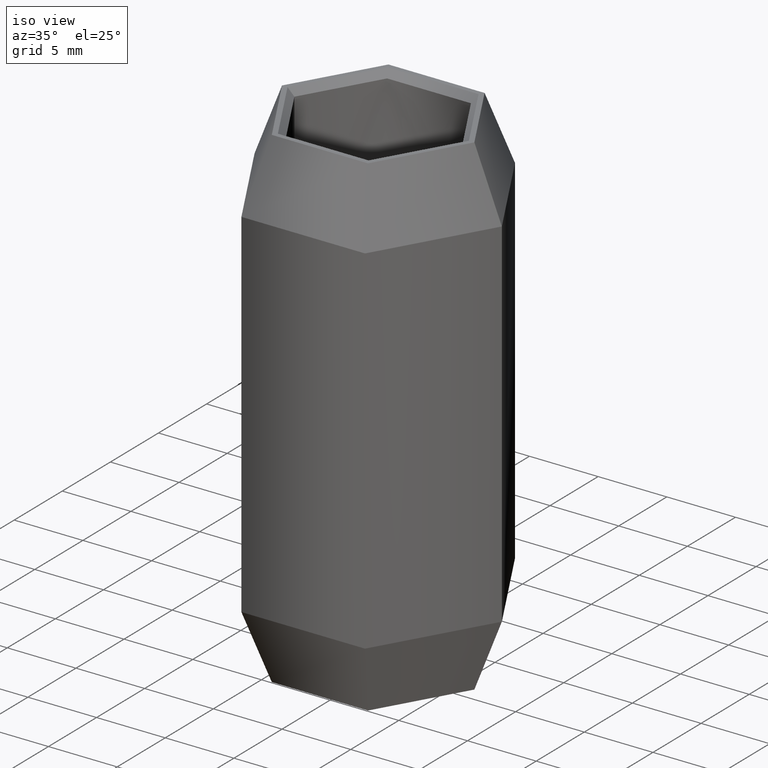
[diagram: clean part render]
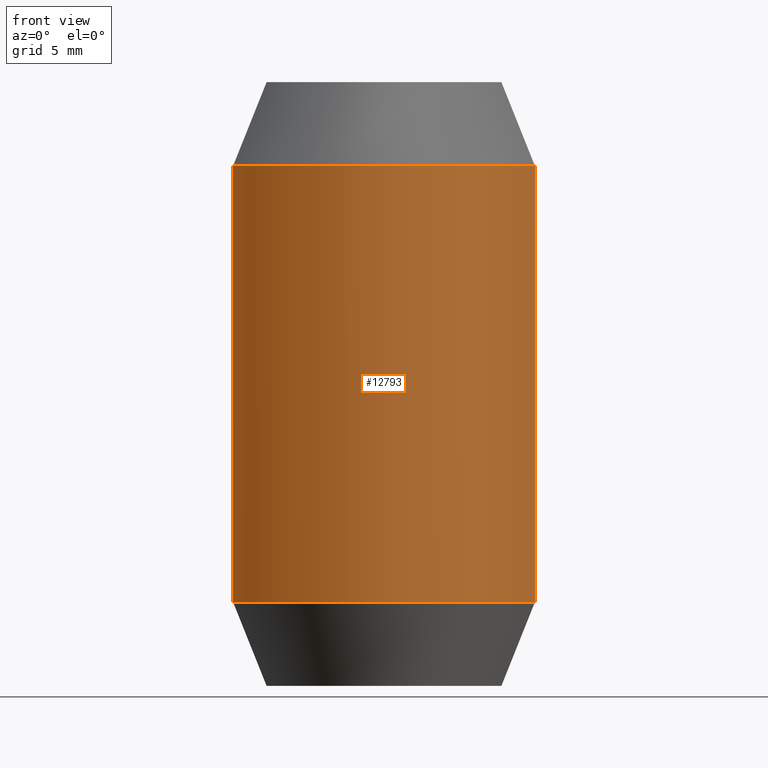
[diagram: tour spotlight — one face highlighted and labeled with its STEP entity id]
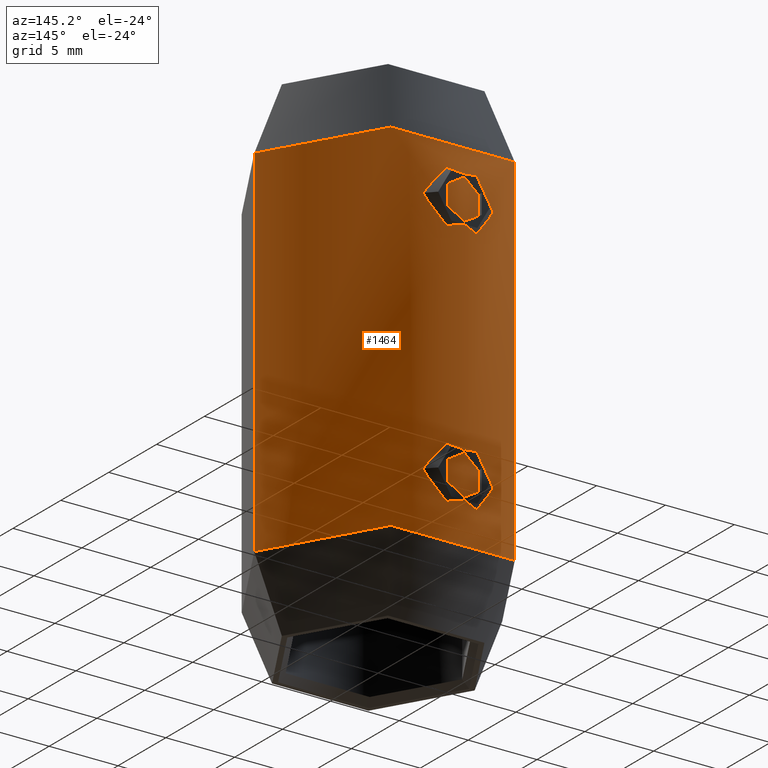
[diagram: tour spotlight — one face highlighted and labeled with its STEP entity id]
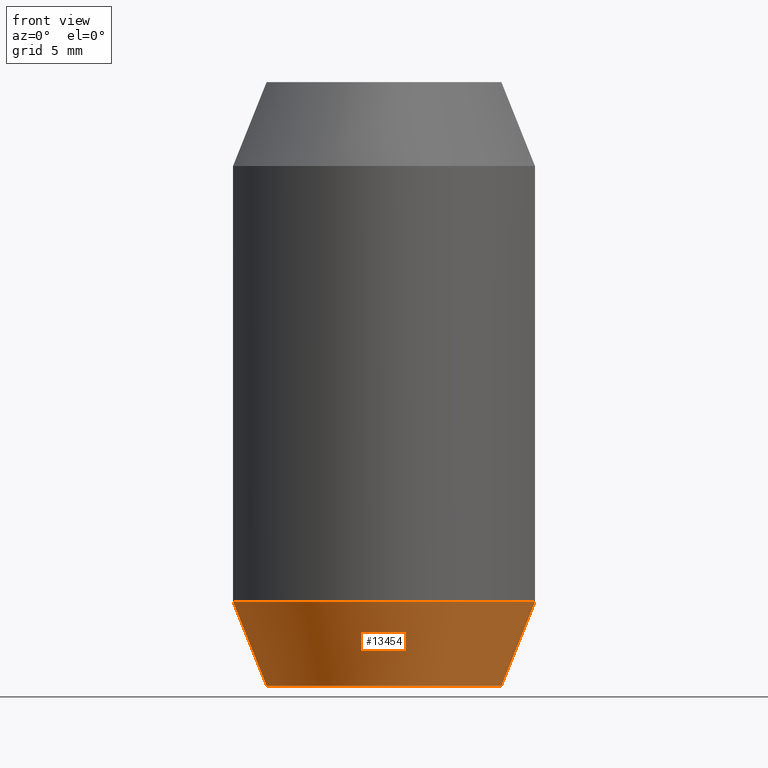
[diagram: tour spotlight — one face highlighted and labeled with its STEP entity id]
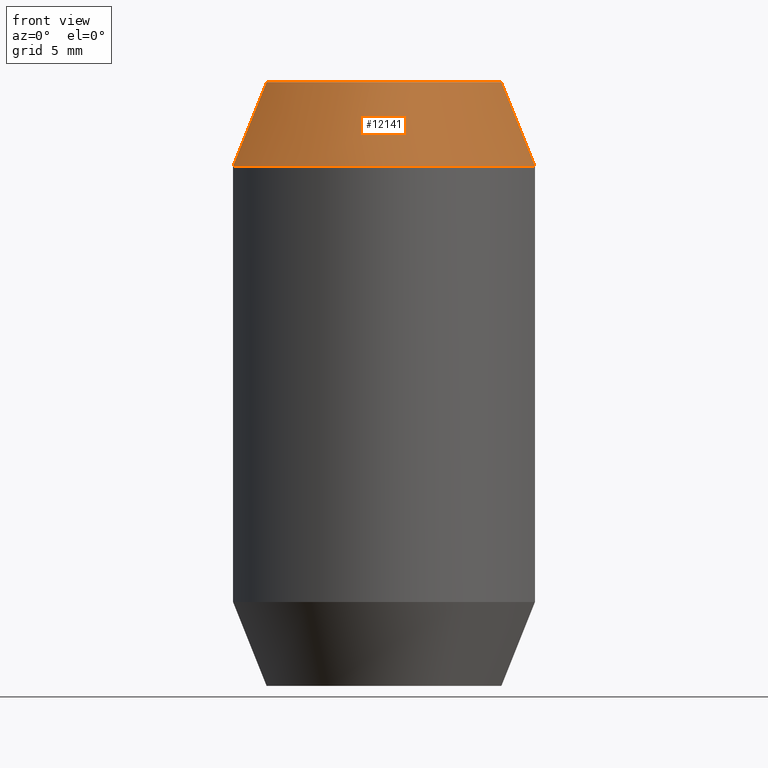
[diagram: tour spotlight — one face highlighted and labeled with its STEP entity id]
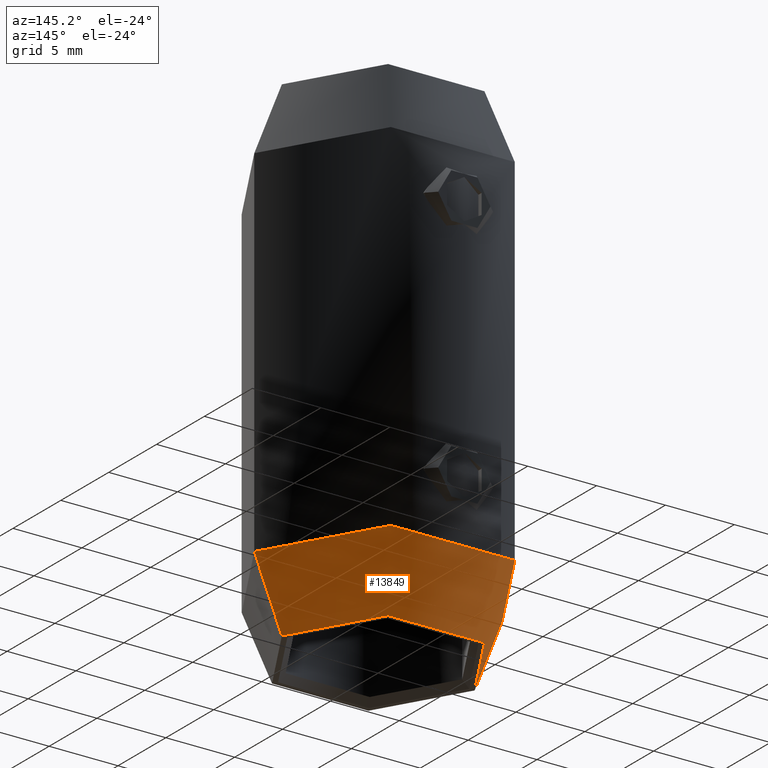
[diagram: tour spotlight — one face highlighted and labeled with its STEP entity id]
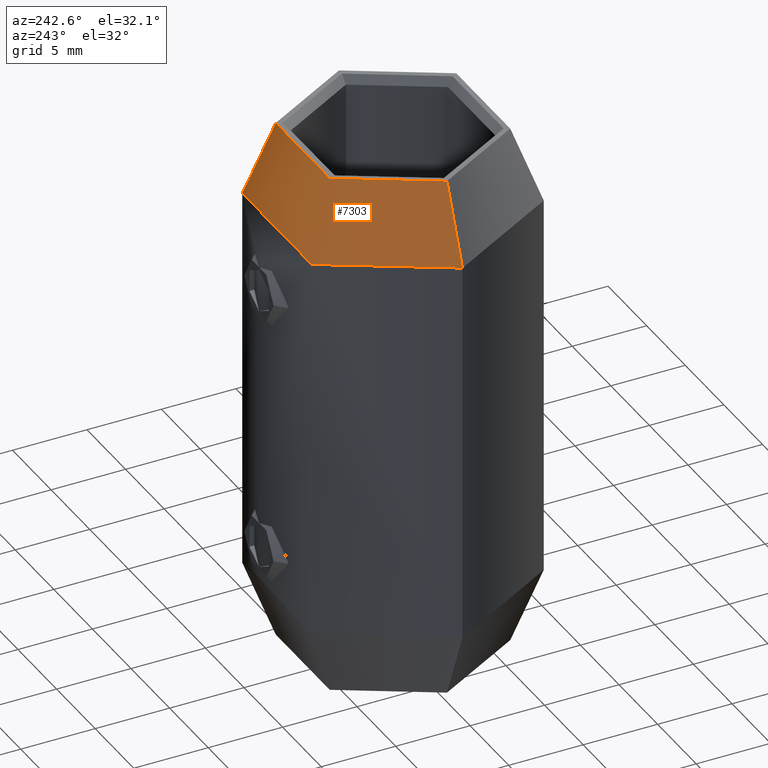
[diagram: tour spotlight — one face highlighted and labeled with its STEP entity id]
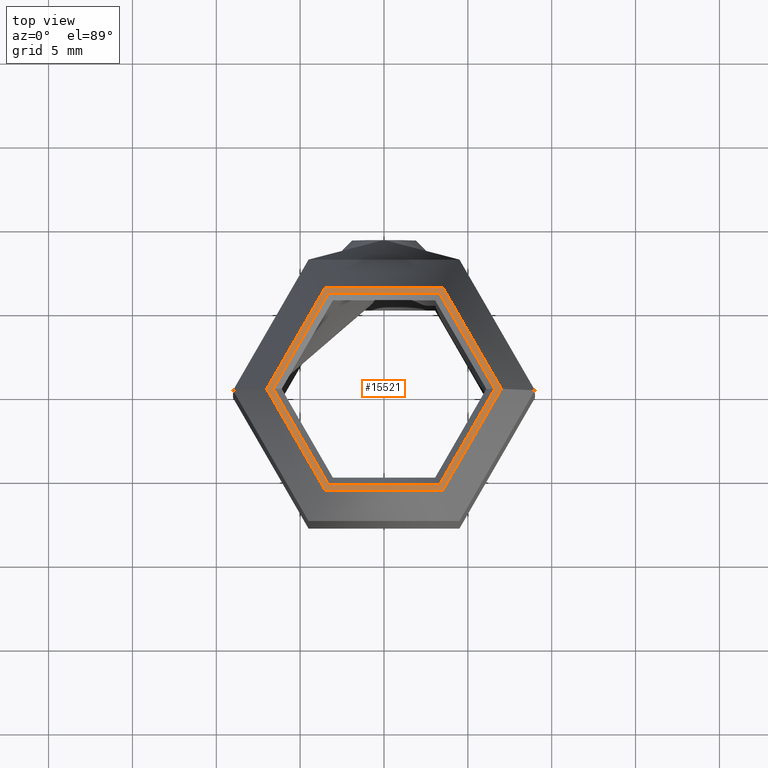
[diagram: tour spotlight — one face highlighted and labeled with its STEP entity id]
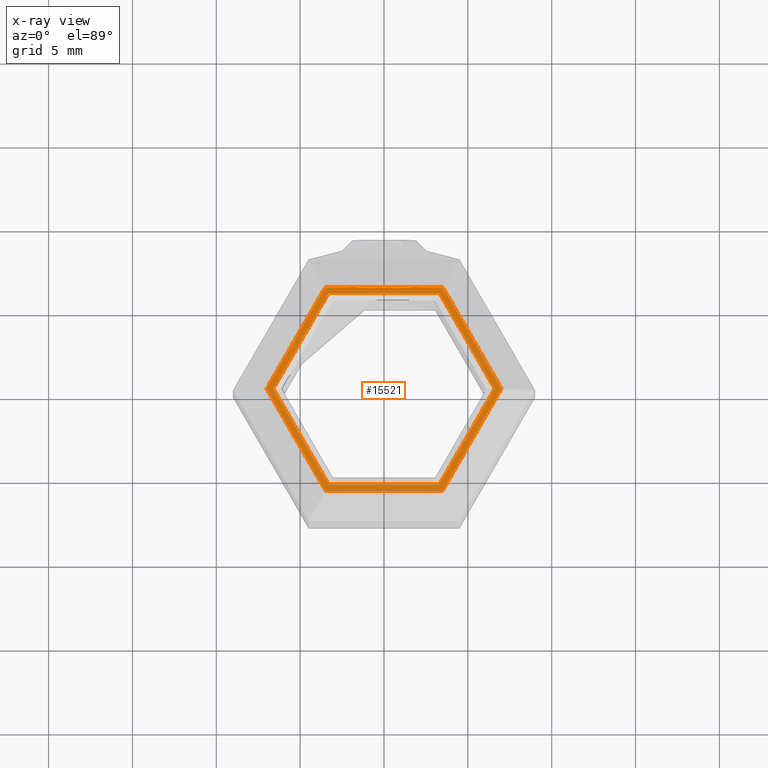
[diagram: x-ray of the same camera — body ghosted, this tour face saturated]
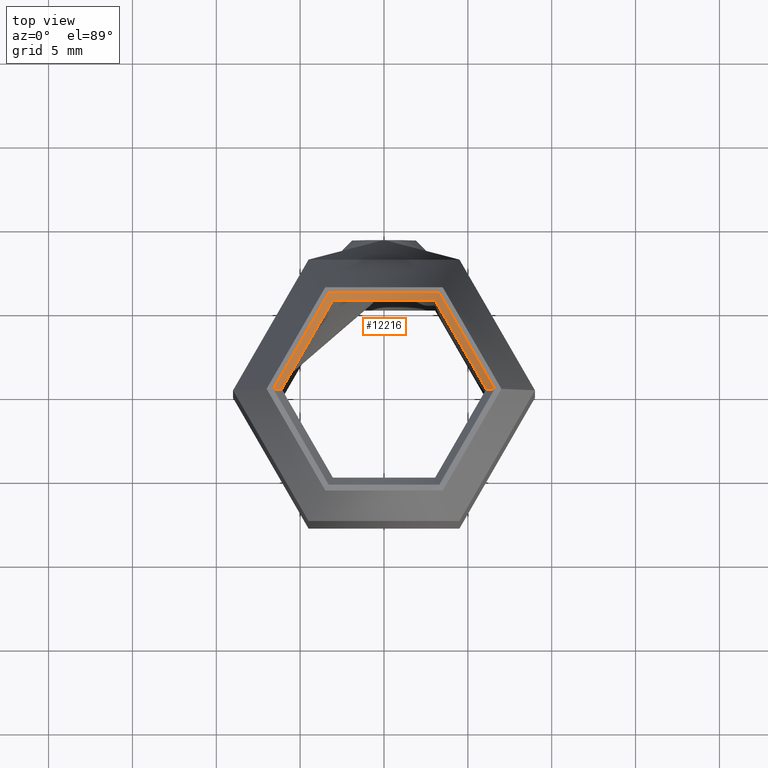
[diagram: tour spotlight — one face highlighted and labeled with its STEP entity id]
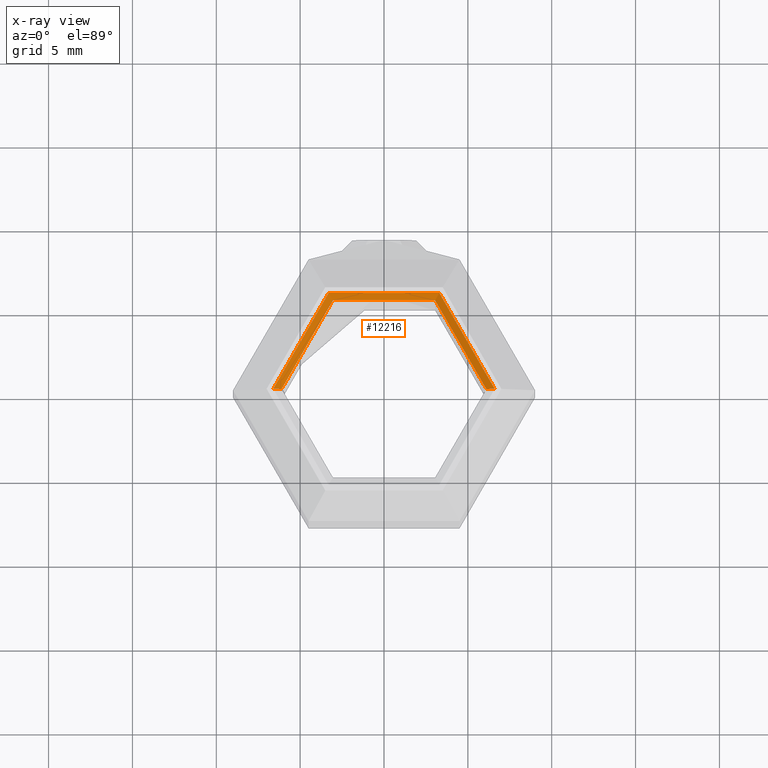
[diagram: x-ray of the same camera — body ghosted, this tour face saturated]
A machine part: a face-by-face anatomy tour. The part has 301 B-rep faces; the first image is the clean iso view, then the 8 largest visible faces are spotlighted one at a time (largest first), each with its STEP entity span.

Face 1 — front view, entity #12793. In plain terms, the highlighted cylindrical surface (partial cylindrical patch) has radius 9 mm, axis along (0, 0, 1).
Definition (entity closure, byte-faithful):
#411 = DIRECTION ( 'NONE',  ( -0.000000000000000000, -0.000000000000000000, 1.000000000000000000 ) ) ;
#843 = DIRECTION ( 'NONE',  ( 1.000000000000000000, 0.000000000000000000, 0.000000000000000000 ) ) ;
#1338 = LINE ( 'NONE', #12367, #9166 ) ;
#1353 = AXIS2_PLACEMENT_3D ( 'NONE', #2131, #9513, #843 ) ;
#2131 = CARTESIAN_POINT ( 'NONE',  ( 0.000000000000000000, 0.000000000000000000, 13.00000000000000000 ) ) ;
#2694 = LINE ( 'NONE', #15162, #14568 ) ;
#3679 = DIRECTION ( 'NONE',  ( -0.000000000000000000, -0.000000000000000000, 1.000000000000000000 ) ) ;
#4453 = FACE_OUTER_BOUND ( 'NONE', #9514, .T. ) ;
#6173 = CARTESIAN_POINT ( 'NONE',  ( 0.000000000000000000, 0.000000000000000000, 18.00000000000000000 ) ) ;
#6290 = VERTEX_POINT ( 'NONE', #11965 ) ;
#6418 = ORIENTED_EDGE ( 'NONE', *, *, #9393, .F. ) ;
#8699 = AXIS2_PLACEMENT_3D ( 'NONE', #15251, #411, #10357 ) ;
#9166 = VECTOR ( 'NONE', #13561, 1000.000000000000000 ) ;
#9393 = EDGE_CURVE ( 'NONE', #6290, #11340, #13589, .T. ) ;
#9513 = DIRECTION ( 'NONE',  ( -0.000000000000000000, -0.000000000000000000, 1.000000000000000000 ) ) ;
#9514 = EDGE_LOOP ( 'NONE', ( #14167, #13720, #13004, #6418 ) ) ;
#9934 = VERTEX_POINT ( 'NONE', #14290 ) ;
#10254 = DIRECTION ( 'NONE',  ( -0.000000000000000000, -0.000000000000000000, 1.000000000000000000 ) ) ;
#10357 = DIRECTION ( 'NONE',  ( 1.000000000000000000, 0.000000000000000000, 0.000000000000000000 ) ) ;
#11340 = VERTEX_POINT ( 'NONE', #13727 ) ;
#11965 = CARTESIAN_POINT ( 'NONE',  ( -8.999999999999998224, 1.102182119232617517E-15, 13.00000000000000000 ) ) ;
#12367 = CARTESIAN_POINT ( 'NONE',  ( 8.999999999999998224, 0.000000000000000000, 18.00000000000000000 ) ) ;
#12393 = VERTEX_POINT ( 'NONE', #13985 ) ;
#12585 = CIRCLE ( 'NONE', #8699, 8.999999999999998224 ) ;
#12793 = ADVANCED_FACE ( 'NONE', ( #4453 ), #13756, .T. ) ;
#13004 = ORIENTED_EDGE ( 'NONE', *, *, #13972, .T. ) ;
#13076 = EDGE_CURVE ( 'NONE', #12393, #9934, #12585, .T. ) ;
#13561 = DIRECTION ( 'NONE',  ( -0.000000000000000000, -0.000000000000000000, 1.000000000000000000 ) ) ;
#13589 = CIRCLE ( 'NONE', #1353, 8.999999999999998224 ) ;
#13720 = ORIENTED_EDGE ( 'NONE', *, *, #13076, .T. ) ;
#13727 = CARTESIAN_POINT ( 'NONE',  ( 8.999999999999998224, 0.000000000000000000, 13.00000000000000000 ) ) ;
#13756 = CYLINDRICAL_SURFACE ( 'NONE', #14593, 8.999999999999998224 ) ;
#13972 = EDGE_CURVE ( 'NONE', #9934, #11340, #1338, .T. ) ;
#13985 = CARTESIAN_POINT ( 'NONE',  ( -8.999999999999998224, 1.102182119232617714E-15, -13.00000000000000178 ) ) ;
#14167 = ORIENTED_EDGE ( 'NONE', *, *, #14198, .F. ) ;
#14198 = EDGE_CURVE ( 'NONE', #12393, #6290, #2694, .T. ) ;
#14290 = CARTESIAN_POINT ( 'NONE',  ( 8.999999999999998224, 0.000000000000000000, -13.00000000000000178 ) ) ;
#14568 = VECTOR ( 'NONE', #10254, 1000.000000000000000 ) ;
#14593 = AXIS2_PLACEMENT_3D ( 'NONE', #6173, #3679, #14841 ) ;
#14841 = DIRECTION ( 'NONE',  ( 1.000000000000000000, 0.000000000000000000, 0.000000000000000000 ) ) ;
#15162 = CARTESIAN_POINT ( 'NONE',  ( -8.999999999999998224, 1.102182119232617517E-15, 18.00000000000000000 ) ) ;
#15251 = CARTESIAN_POINT ( 'NONE',  ( 0.000000000000000000, 0.000000000000000000, -13.00000000000000178 ) ) ;

Face 2 — auxiliary view, entity #1464. In plain terms, the highlighted cylindrical surface (partial cylindrical patch) has radius 9 mm, axis along (0, 0, 1).
Definition (entity closure, byte-faithful):
#141 = CARTESIAN_POINT ( 'NONE',  ( 0.000000000000000000, 0.000000000000000000, -13.00000000000000178 ) ) ;
#217 = CARTESIAN_POINT ( 'NONE',  ( 1.821270232687748125, 8.814134435502452902, 7.945666501401936088 ) ) ;
#367 = CARTESIAN_POINT ( 'NONE',  ( 2.571768753324493955E-16, 8.999999999999998224, 6.900000000000001243 ) ) ;
#758 = CARTESIAN_POINT ( 'NONE',  ( 1.821270232687745017, 8.814134435502458231, -10.05433349859806569 ) ) ;
#765 = CARTESIAN_POINT ( 'NONE',  ( -2.086273663307475434, 8.754897343847833469, 8.723639342815243225 ) ) ;
#818 = CARTESIAN_POINT ( 'NONE',  ( -1.991843928111111550, 8.776983570939002277, 9.679151338962943996 ) ) ;
#1005 = CARTESIAN_POINT ( 'NONE',  ( -2.086513239613602355, 8.754840634587448989, -8.725048273204425442 ) ) ;
#1049 = AXIS2_PLACEMENT_3D ( 'NONE', #141, #6327, #5143 ) ;
#1108 = CARTESIAN_POINT ( 'NONE',  ( -2.099943563489800269, 8.751584829818270350, -8.861637844470349634 ) ) ;
#1207 = ORIENTED_EDGE ( 'NONE', *, *, #15417, .T. ) ;
#1236 = CARTESIAN_POINT ( 'NONE',  ( 0.9311229287888932449, 8.952604426523759429, 7.112740471821393129 ) ) ;
#1273 = FACE_OUTER_BOUND ( 'NONE', #14604, .T. ) ;
#1338 = LINE ( 'NONE', #12367, #9166 ) ;
#1342 = CARTESIAN_POINT ( 'NONE',  ( 1.582159275095841977, 8.860378867586938156, 10.38757255550040348 ) ) ;
#1378 = ORIENTED_EDGE ( 'NONE', *, *, #6813, .F. ) ;
#1464 = ADVANCED_FACE ( 'NONE', ( #9679, #2241, #1273 ), #10036, .T. ) ;
#1657 = CARTESIAN_POINT ( 'NONE',  ( -0.5451947702822876884, 8.984481132575623974, 11.03262961501316575 ) ) ;
#1762 = VERTEX_POINT ( 'NONE', #14879 ) ;
#1988 = CARTESIAN_POINT ( 'NONE',  ( 1.669404537159665525, 8.844155109386951708, -10.28130124406839485 ) ) ;
#2088 = DIRECTION ( 'NONE',  ( 1.000000000000000000, 0.000000000000000000, 0.000000000000000000 ) ) ;
#2143 = ORIENTED_EDGE ( 'NONE', *, *, #9210, .T. ) ;
#2239 = CARTESIAN_POINT ( 'NONE',  ( -1.679477079426144437, 8.844114957262966925, -10.29043885399485170 ) ) ;
#2241 = FACE_BOUND ( 'NONE', #12645, .T. ) ;
#2270 = CARTESIAN_POINT ( 'NONE',  ( 2.571768753324493955E-16, 8.999999999999998224, 6.900000000000001243 ) ) ;
#2295 = CARTESIAN_POINT ( 'NONE',  ( -1.992583815650146750, 8.776818335132283266, -9.677230764306219868 ) ) ;
#2498 = EDGE_CURVE ( 'NONE', #1762, #15095, #15410, .T. ) ;
#2557 = CARTESIAN_POINT ( 'NONE',  ( -3.284583562078037481E-15, 8.999999999999998224, -6.900000000000001243 ) ) ;
#2694 = LINE ( 'NONE', #15162, #14568 ) ;
#2699 = CARTESIAN_POINT ( 'NONE',  ( 2.099894659804736552, 8.751596564594677830, 8.722090414501820987 ) ) ;
#2925 = CARTESIAN_POINT ( 'NONE',  ( -0.6788506439432915318, 8.975268029849280182, 10.99200752504877876 ) ) ;
#2939 = AXIS2_PLACEMENT_3D ( 'NONE', #15781, #4521, #2088 ) ;
#2966 = CARTESIAN_POINT ( 'NONE',  ( 0.000000000000000000, 0.000000000000000000, 13.00000000000000000 ) ) ;
#3101 = CARTESIAN_POINT ( 'NONE',  ( -2.086513239613598802, 8.754840634587452541, 9.274951726795572782 ) ) ;
#3217 = CARTESIAN_POINT ( 'NONE',  ( -0.1373305425714236305, 9.000000000000000000, 6.900000000000003908 ) ) ;
#3269 = CARTESIAN_POINT ( 'NONE',  ( 1.887200096898048018, 8.800077975375659278, -8.068714986384616594 ) ) ;
#3322 = CARTESIAN_POINT ( 'NONE',  ( 0.2745879043004498810, 9.000000000000000000, -11.09999999999999787 ) ) ;
#3574 = CARTESIAN_POINT ( 'NONE',  ( -0.6779847307117615740, 8.975330091746489103, -10.99228251151783375 ) ) ;
#3625 = B_SPLINE_CURVE_WITH_KNOTS ( 'NONE', 3,
 ( #2270, #8824, #3807, #1236, #11318, #8877, #11263, #5165, #12533, #217, #10165, #7663, #2699, #12440, #12488, #8938, #12589, #3860, #8719, #14915, #1342, #3759, #11413, #9952, #5006, #6251, #14968, #12385 ),
 .UNSPECIFIED., .F., .F.,
 ( 4, 2, 2, 2, 2, 2, 2, 2, 2, 2, 2, 2, 2, 4 ),
 ( 0.006588328198082919925, 0.007411649798144270482, 0.007823310598174945327, 0.008234971398205621906, 0.008646632198236296751, 0.009058292998266973331, 0.009881614598328321286, 0.01029327539835899613, 0.01070493619838967098, 0.01111659699842034756, 0.01152825779845102414, 0.01235157939851237903, 0.01276324019854305561, 0.01317490099857373219 ),
 .UNSPECIFIED. ) ;
#3759 = CARTESIAN_POINT ( 'NONE',  ( 1.293136229575852836, 8.908757785885216052, 10.67694393643832029 ) ) ;
#3807 = CARTESIAN_POINT ( 'NONE',  ( 0.5518026687520184437, 8.986655524725263078, 6.955380828704875285 ) ) ;
#3860 = CARTESIAN_POINT ( 'NONE',  ( 1.887200096898052237, 8.800077975375661055, 9.931285013615379853 ) ) ;
#4183 = CARTESIAN_POINT ( 'NONE',  ( -1.281344237653954110, 8.909060968035033667, 10.66941714240942041 ) ) ;
#4301 = CARTESIAN_POINT ( 'NONE',  ( 2.409859401707378383E-16, 8.999999999999998224, 11.09999999999999787 ) ) ;
#4467 = CARTESIAN_POINT ( 'NONE',  ( 0.9311229287888886930, 8.952604426523757652, -10.88725952817860687 ) ) ;
#4511 = CARTESIAN_POINT ( 'NONE',  ( 0.5472899765283957274, 8.984366466614998714, -6.967874090501058326 ) ) ;
#4521 = DIRECTION ( 'NONE',  ( -0.000000000000000000, -0.000000000000000000, 1.000000000000000000 ) ) ;
#4525 = CARTESIAN_POINT ( 'NONE',  ( 1.822787438124695569, 8.813825155187871019, -7.948154672940514587 ) ) ;
#4529 = CARTESIAN_POINT ( 'NONE',  ( -0.2767516183469415636, 8.996761130966879350, 6.913758579802273374 ) ) ;
#4576 = CARTESIAN_POINT ( 'NONE',  ( -1.281731857945846542, 8.908999664385763850, 7.330919196859150055 ) ) ;
#4769 = CARTESIAN_POINT ( 'NONE',  ( -0.9316293612701153082, 8.952557192451092050, -10.88703991319673747 ) ) ;
#4825 = CARTESIAN_POINT ( 'NONE',  ( -0.2767516183469454494, 8.996761130966875797, -11.08624142019772663 ) ) ;
#5006 = CARTESIAN_POINT ( 'NONE',  ( 0.5472899765283980589, 8.984366466614996938, 11.03212590949894079 ) ) ;
#5143 = DIRECTION ( 'NONE',  ( 1.000000000000000000, 0.000000000000000000, 0.000000000000000000 ) ) ;
#5165 = CARTESIAN_POINT ( 'NONE',  ( 1.581071243425919093, 8.860578659086709052, 7.611132575112883991 ) ) ;
#5279 = B_SPLINE_CURVE_WITH_KNOTS ( 'NONE', 3,
 ( #4301, #7875, #15392, #1657, #2925, #7934, #11624, #4183, #12855, #11683, #8111, #818, #8282, #3101, #6955, #7007, #765, #9322, #14389, #11861, #13030, #9539, #4576, #9383, #11916, #5768, #8236, #4529, #3217, #13198 ),
 .UNSPECIFIED., .F., .F.,
 ( 4, 2, 2, 2, 2, 2, 2, 2, 2, 2, 2, 2, 2, 2, 4 ),
 ( 2.340728691190122652E-19, 0.0004117705123801834169, 0.0008235410247603666169, 0.001235311537140549925, 0.001647082049520733017, 0.002470623074281100284, 0.002882393586661283376, 0.003294164099041466901, 0.003705934611421649993, 0.004117705123801832651, 0.004941246148562195364, 0.005353016660942376721, 0.005764787173322558078, 0.006176557685702738568, 0.006588328198082919925 ),
 .UNSPECIFIED. ) ;
#5722 = CARTESIAN_POINT ( 'NONE',  ( 2.100052443159067472, 8.751558703391475902, -8.862240913262798614 ) ) ;
#5768 = CARTESIAN_POINT ( 'NONE',  ( -0.6779847307117581323, 8.975330091746492656, 7.007717488482165358 ) ) ;
#5813 = CARTESIAN_POINT ( 'NONE',  ( 1.282009776888024088, 8.908966473292085908, -10.66891798325554852 ) ) ;
#5826 = ORIENTED_EDGE ( 'NONE', *, *, #8775, .T. ) ;
#5957 = CARTESIAN_POINT ( 'NONE',  ( -3.284583562078037481E-15, 8.999999999999998224, -6.900000000000001243 ) ) ;
#6018 = CARTESIAN_POINT ( 'NONE',  ( -0.5470401376359104173, 8.984378074955957416, -11.03217661865831900 ) ) ;
#6168 = CARTESIAN_POINT ( 'NONE',  ( -1.834002307007757793, 8.811819161734465666, -10.05951055678787220 ) ) ;
#6251 = CARTESIAN_POINT ( 'NONE',  ( 0.2765232721358191759, 8.996771754624646178, 11.08628783019809205 ) ) ;
#6290 = VERTEX_POINT ( 'NONE', #11965 ) ;
#6327 = DIRECTION ( 'NONE',  ( -0.000000000000000000, -0.000000000000000000, 1.000000000000000000 ) ) ;
#6546 = VERTEX_POINT ( 'NONE', #367 ) ;
#6813 = EDGE_CURVE ( 'NONE', #11340, #6290, #9183, .T. ) ;
#6935 = EDGE_CURVE ( 'NONE', #15095, #1762, #8298, .T. ) ;
#6951 = CARTESIAN_POINT ( 'NONE',  ( 2.032995456862028316, 8.767421823017198079, -8.456122632661417171 ) ) ;
#6955 = CARTESIAN_POINT ( 'NONE',  ( -2.099943563489796716, 8.751584829818270350, 9.138362155529650366 ) ) ;
#7007 = CARTESIAN_POINT ( 'NONE',  ( -2.100056084944826207, 8.751557829520050902, 8.863356317338688228 ) ) ;
#7057 = CARTESIAN_POINT ( 'NONE',  ( 1.387388393820289112, 8.892963167321902063, -10.58236925064717227 ) ) ;
#7266 = CARTESIAN_POINT ( 'NONE',  ( -3.049369482360552843E-15, 8.999999999999998224, -11.09999999999999787 ) ) ;
#7413 = VERTEX_POINT ( 'NONE', #8428 ) ;
#7663 = CARTESIAN_POINT ( 'NONE',  ( 2.045133297683452867, 8.765229009825853623, 8.448811737281177514 ) ) ;
#7875 = CARTESIAN_POINT ( 'NONE',  ( -0.1392689500587724893, 8.999999999999998224, 11.09999999999999964 ) ) ;
#7934 = CARTESIAN_POINT ( 'NONE',  ( -0.9329680171625268637, 8.952421185543531834, 10.88639944221392852 ) ) ;
#8111 = CARTESIAN_POINT ( 'NONE',  ( -1.834552045170089407, 8.811693943136450713, 10.05791015414132694 ) ) ;
#8214 = CARTESIAN_POINT ( 'NONE',  ( 1.059867097765995858, 8.940974746594038791, -7.166539281198065048 ) ) ;
#8236 = CARTESIAN_POINT ( 'NONE',  ( -0.5470401376359068646, 8.984378074955959192, 6.967823381341680999 ) ) ;
#8282 = CARTESIAN_POINT ( 'NONE',  ( -2.032416657549452665, 8.767556932590853336, 9.546276927268772639 ) ) ;
#8298 = B_SPLINE_CURVE_WITH_KNOTS ( 'NONE', 3,
 ( #5957, #14736, #10923, #14635, #9782, #12202, #15876, #14789, #8533, #12353, #8591, #16028, #8476, #1005, #1108, #13602, #9729, #12256, #2295, #6168, #2239, #14835, #9821, #10976, #4769, #3574, #6018, #4825, #14681, #7266 ),
 .UNSPECIFIED., .F., .F.,
 ( 4, 2, 2, 2, 2, 2, 2, 2, 2, 2, 2, 2, 2, 2, 4 ),
 ( 2.133275734245097971E-20, 0.0004117705123801819532, 0.0008235410247603639064, 0.001235311537140545805, 0.001647082049520727813, 0.002470623074281093779, 0.002882393586661277304, 0.003294164099041460830, 0.003705934611421643921, 0.004117705123801827446, 0.004941246148562189293, 0.005353016660942371517, 0.005764787173322554609, 0.006176557685702737700, 0.006588328198082919925 ),
 .UNSPECIFIED. ) ;
#8331 = CARTESIAN_POINT ( 'NONE',  ( 2.099894659804732111, 8.751596564594677830, -9.277909585498173684 ) ) ;
#8428 = CARTESIAN_POINT ( 'NONE',  ( 2.409859401707378383E-16, 8.999999999999998224, 11.09999999999999787 ) ) ;
#8476 = CARTESIAN_POINT ( 'NONE',  ( -2.032416657549456662, 8.767556932590853336, -8.453723072731227361 ) ) ;
#8533 = CARTESIAN_POINT ( 'NONE',  ( -1.388870823506893393, 8.892727693654389753, -7.418967684159895271 ) ) ;
#8591 = CARTESIAN_POINT ( 'NONE',  ( -1.834552045170093848, 8.811693943136452489, -7.942089845858673947 ) ) ;
#8719 = CARTESIAN_POINT ( 'NONE',  ( 1.822787438124699344, 8.813825155187871019, 10.05184532705948364 ) ) ;
#8775 = EDGE_CURVE ( 'NONE', #7413, #6546, #5279, .T. ) ;
#8824 = CARTESIAN_POINT ( 'NONE',  ( 0.2745879043004527120, 8.999999999999998224, 6.900000000000002132 ) ) ;
#8877 = CARTESIAN_POINT ( 'NONE',  ( 1.282009776888026975, 8.908966473292087684, 7.331082016744450591 ) ) ;
#8938 = CARTESIAN_POINT ( 'NONE',  ( 2.032995456862031425, 8.767421823017198079, 9.543877367338579276 ) ) ;
#9166 = VECTOR ( 'NONE', #13561, 1000.000000000000000 ) ;
#9183 = CIRCLE ( 'NONE', #14651, 8.999999999999998224 ) ;
#9210 = EDGE_CURVE ( 'NONE', #9934, #12393, #10299, .T. ) ;
#9322 = CARTESIAN_POINT ( 'NONE',  ( -2.032413439143192058, 8.767557294475714968, 8.453915186587174446 ) ) ;
#9383 = CARTESIAN_POINT ( 'NONE',  ( -1.054657655711842779, 8.938725233776198209, 7.178911173958002045 ) ) ;
#9481 = CARTESIAN_POINT ( 'NONE',  ( 1.992310043403848763, 8.776878560705734245, -8.322123408525742505 ) ) ;
#9495 = ORIENTED_EDGE ( 'NONE', *, *, #2498, .T. ) ;
#9515 = CARTESIAN_POINT ( 'NONE',  ( -3.284583562078037481E-15, 8.999999999999998224, -6.900000000000001243 ) ) ;
#9539 = CARTESIAN_POINT ( 'NONE',  ( -1.387261852917378802, 8.892989244952472561, 7.417447165022739597 ) ) ;
#9679 = FACE_BOUND ( 'NONE', #14002, .T. ) ;
#9729 = CARTESIAN_POINT ( 'NONE',  ( -2.086273663307478543, 8.754897343847833469, -9.276360657184758551 ) ) ;
#9782 = CARTESIAN_POINT ( 'NONE',  ( -0.6788506439432945294, 8.975268029849280182, -7.007992474951221240 ) ) ;
#9821 = CARTESIAN_POINT ( 'NONE',  ( -1.281731857945850095, 8.908999664385762074, -10.66908080314085083 ) ) ;
#9934 = VERTEX_POINT ( 'NONE', #14290 ) ;
#9952 = CARTESIAN_POINT ( 'NONE',  ( 0.6808979882877427281, 8.975102498054580380, 10.99125639926777254 ) ) ;
#10036 = CYLINDRICAL_SURFACE ( 'NONE', #2939, 8.999999999999998224 ) ;
#10165 = CARTESIAN_POINT ( 'NONE',  ( 1.885952087718963277, 8.800348696092957113, 8.066041007649877415 ) ) ;
#10254 = DIRECTION ( 'NONE',  ( -0.000000000000000000, -0.000000000000000000, 1.000000000000000000 ) ) ;
#10299 = CIRCLE ( 'NONE', #1049, 8.999999999999998224 ) ;
#10482 = DIRECTION ( 'NONE',  ( -0.000000000000000000, -0.000000000000000000, 1.000000000000000000 ) ) ;
#10594 = CARTESIAN_POINT ( 'NONE',  ( 0.6808979882877372880, 8.975102498054580380, -7.008743600732228352 ) ) ;
#10669 = CARTESIAN_POINT ( 'NONE',  ( 0.5518026687520147799, 8.986655524725263078, -11.04461917129512294 ) ) ;
#10923 = CARTESIAN_POINT ( 'NONE',  ( -0.2761163760081279950, 8.996771549064181528, -6.913716165937175084 ) ) ;
#10976 = CARTESIAN_POINT ( 'NONE',  ( -1.054657655711846775, 8.938725233776196433, -10.82108882604199884 ) ) ;
#11256 = ORIENTED_EDGE ( 'NONE', *, *, #14198, .T. ) ;
#11263 = CARTESIAN_POINT ( 'NONE',  ( 1.387388393820293109, 8.892963167321903839, 7.417630749352826847 ) ) ;
#11318 = CARTESIAN_POINT ( 'NONE',  ( 1.053888395648363341, 8.938822737911106486, 7.178419490555528526 ) ) ;
#11340 = VERTEX_POINT ( 'NONE', #13727 ) ;
#11413 = CARTESIAN_POINT ( 'NONE',  ( 1.059867097766001187, 8.940974746594042344, 10.83346071880193051 ) ) ;
#11624 = CARTESIAN_POINT ( 'NONE',  ( -1.053413272499464481, 8.938877494677743840, 10.82184443025780496 ) ) ;
#11683 = CARTESIAN_POINT ( 'NONE',  ( -1.678295236407307378, 8.844297433428977229, 10.29144356900729207 ) ) ;
#11725 = DIRECTION ( 'NONE',  ( 1.000000000000000000, 0.000000000000000000, 0.000000000000000000 ) ) ;
#11774 = CARTESIAN_POINT ( 'NONE',  ( 1.582159275095839535, 8.860378867586938156, -7.612427444499599183 ) ) ;
#11861 = CARTESIAN_POINT ( 'NONE',  ( -1.834002307007755128, 8.811819161734463890, 7.940489443212132237 ) ) ;
#11897 = CARTESIAN_POINT ( 'NONE',  ( 0.2765232721358176771, 8.996771754624644402, -6.913712169801911500 ) ) ;
#11916 = CARTESIAN_POINT ( 'NONE',  ( -0.9316293612701120885, 8.952557192451097379, 7.112960086803263415 ) ) ;
#11953 = CARTESIAN_POINT ( 'NONE',  ( 1.885952087718961279, 8.800348696092962442, -9.933958992350124362 ) ) ;
#11965 = CARTESIAN_POINT ( 'NONE',  ( -8.999999999999998224, 1.102182119232617517E-15, 13.00000000000000000 ) ) ;
#12202 = CARTESIAN_POINT ( 'NONE',  ( -0.9329680171625295282, 8.952421185543531834, -7.113600557786076806 ) ) ;
#12256 = CARTESIAN_POINT ( 'NONE',  ( -2.032413439143195610, 8.767557294475711416, -9.546084813412829106 ) ) ;
#12353 = CARTESIAN_POINT ( 'NONE',  ( -1.678295236407310931, 8.844297433428975452, -7.708556430992709707 ) ) ;
#12367 = CARTESIAN_POINT ( 'NONE',  ( 8.999999999999998224, 0.000000000000000000, 18.00000000000000000 ) ) ;
#12385 = CARTESIAN_POINT ( 'NONE',  ( 2.409859401707378383E-16, 8.999999999999998224, 11.09999999999999787 ) ) ;
#12393 = VERTEX_POINT ( 'NONE', #13985 ) ;
#12440 = CARTESIAN_POINT ( 'NONE',  ( 2.100052443159071025, 8.751558703391472349, 9.137759086737201386 ) ) ;
#12488 = CARTESIAN_POINT ( 'NONE',  ( 2.086525083260056590, 8.754836893241730422, 9.274383299877055009 ) ) ;
#12533 = CARTESIAN_POINT ( 'NONE',  ( 1.669404537159669299, 8.844155109386953484, 7.718698755931600708 ) ) ;
#12589 = CARTESIAN_POINT ( 'NONE',  ( 1.992310043403852315, 8.776878560705736021, 9.677876591474257495 ) ) ;
#12645 = EDGE_LOOP ( 'NONE', ( #12959, #9495 ) ) ;
#12855 = CARTESIAN_POINT ( 'NONE',  ( -1.388870823506890950, 8.892727693654391530, 10.58103231584010473 ) ) ;
#12959 = ORIENTED_EDGE ( 'NONE', *, *, #6935, .T. ) ;
#13030 = CARTESIAN_POINT ( 'NONE',  ( -1.679477079426141106, 8.844114957262968701, 7.709561146005145638 ) ) ;
#13131 = CARTESIAN_POINT ( 'NONE',  ( 2.045133297683448870, 8.765229009825855400, -9.551188262718820710 ) ) ;
#13198 = CARTESIAN_POINT ( 'NONE',  ( 2.571768753324493955E-16, 8.999999999999998224, 6.900000000000001243 ) ) ;
#13251 = CARTESIAN_POINT ( 'NONE',  ( 1.053888395648359344, 8.938822737911104710, -10.82158050944446970 ) ) ;
#13561 = DIRECTION ( 'NONE',  ( -0.000000000000000000, -0.000000000000000000, 1.000000000000000000 ) ) ;
#13602 = CARTESIAN_POINT ( 'NONE',  ( -2.100056084944829760, 8.751557829520050902, -9.136643682661317101 ) ) ;
#13727 = CARTESIAN_POINT ( 'NONE',  ( 8.999999999999998224, 0.000000000000000000, 13.00000000000000000 ) ) ;
#13972 = EDGE_CURVE ( 'NONE', #9934, #11340, #1338, .T. ) ;
#13985 = CARTESIAN_POINT ( 'NONE',  ( -8.999999999999998224, 1.102182119232617714E-15, -13.00000000000000178 ) ) ;
#14002 = EDGE_LOOP ( 'NONE', ( #5826, #1207 ) ) ;
#14198 = EDGE_CURVE ( 'NONE', #12393, #6290, #2694, .T. ) ;
#14290 = CARTESIAN_POINT ( 'NONE',  ( 8.999999999999998224, 0.000000000000000000, -13.00000000000000178 ) ) ;
#14389 = CARTESIAN_POINT ( 'NONE',  ( -1.992583815650143420, 8.776818335132281490, 8.322769235693781908 ) ) ;
#14437 = CARTESIAN_POINT ( 'NONE',  ( 1.669954957244465632, 8.844055537567724556, -7.719303674785977343 ) ) ;
#14479 = CARTESIAN_POINT ( 'NONE',  ( -3.049369482360552843E-15, 8.999999999999998224, -11.09999999999999787 ) ) ;
#14568 = VECTOR ( 'NONE', #10254, 1000.000000000000000 ) ;
#14604 = EDGE_LOOP ( 'NONE', ( #2143, #11256, #1378, #15280 ) ) ;
#14635 = CARTESIAN_POINT ( 'NONE',  ( -0.5451947702822904640, 8.984481132575623974, -6.967370384986827148 ) ) ;
#14651 = AXIS2_PLACEMENT_3D ( 'NONE', #2966, #10482, #11725 ) ;
#14681 = CARTESIAN_POINT ( 'NONE',  ( -0.1373305425714265726, 9.000000000000000000, -11.09999999999999787 ) ) ;
#14736 = CARTESIAN_POINT ( 'NONE',  ( -0.1392689500587757645, 8.999999999999996447, -6.900000000000000355 ) ) ;
#14789 = CARTESIAN_POINT ( 'NONE',  ( -1.281344237653956553, 8.909060968035033667, -7.330582857590579593 ) ) ;
#14835 = CARTESIAN_POINT ( 'NONE',  ( -1.387261852917381910, 8.892989244952470784, -10.58255283497726040 ) ) ;
#14879 = CARTESIAN_POINT ( 'NONE',  ( -3.049369482360552843E-15, 8.999999999999998224, -11.09999999999999787 ) ) ;
#14915 = CARTESIAN_POINT ( 'NONE',  ( 1.669954957244468075, 8.844055537567721004, 10.28069632521402177 ) ) ;
#14968 = CARTESIAN_POINT ( 'NONE',  ( 0.1392318431672763812, 9.000000000000001776, 11.09999999999999787 ) ) ;
#15095 = VERTEX_POINT ( 'NONE', #2557 ) ;
#15162 = CARTESIAN_POINT ( 'NONE',  ( -8.999999999999998224, 1.102182119232617517E-15, 18.00000000000000000 ) ) ;
#15280 = ORIENTED_EDGE ( 'NONE', *, *, #13972, .F. ) ;
#15392 = CARTESIAN_POINT ( 'NONE',  ( -0.2761163760081248864, 8.996771549064183304, 11.08628383406282403 ) ) ;
#15410 = B_SPLINE_CURVE_WITH_KNOTS ( 'NONE', 3,
 ( #14479, #3322, #10669, #4467, #13251, #5813, #7057, #15731, #1988, #758, #11953, #13131, #8331, #5722, #15618, #6951, #9481, #3269, #4525, #14437, #11774, #15431, #8214, #10594, #4511, #11897, #15656, #9515 ),
 .UNSPECIFIED., .F., .F.,
 ( 4, 2, 2, 2, 2, 2, 2, 2, 2, 2, 2, 2, 2, 4 ),
 ( 0.006588328198082919925, 0.007411649798144270482, 0.007823310598174945327, 0.008234971398205620172, 0.008646632198236295017, 0.009058292998266969862, 0.009881614598328319551, 0.01029327539835899440, 0.01070493619838966924, 0.01111659699842034409, 0.01152825779845102067, 0.01235157939851237383, 0.01276324019854304867, 0.01317490099857372698 ),
 .UNSPECIFIED. ) ;
#15417 = EDGE_CURVE ( 'NONE', #6546, #7413, #3625, .T. ) ;
#15431 = CARTESIAN_POINT ( 'NONE',  ( 1.293136229575849949, 8.908757785885216052, -7.323056063561676154 ) ) ;
#15618 = CARTESIAN_POINT ( 'NONE',  ( 2.086525083260053037, 8.754836893241730422, -8.725616700122943215 ) ) ;
#15656 = CARTESIAN_POINT ( 'NONE',  ( 0.1392318431672727175, 9.000000000000000000, -6.900000000000001243 ) ) ;
#15731 = CARTESIAN_POINT ( 'NONE',  ( 1.581071243425915318, 8.860578659086707276, -10.38886742488711334 ) ) ;
#15781 = CARTESIAN_POINT ( 'NONE',  ( 0.000000000000000000, 0.000000000000000000, 18.00000000000000000 ) ) ;
#15876 = CARTESIAN_POINT ( 'NONE',  ( -1.053413272499466480, 8.938877494677743840, -7.178155569742192377 ) ) ;
#16028 = CARTESIAN_POINT ( 'NONE',  ( -1.991843928111116213, 8.776983570939009383, -8.320848661037059557 ) ) ;

Face 3 — front view, entity #13454. In plain terms, the highlighted conical surface has half-angle 21.801 deg.
Definition (entity closure, byte-faithful):
#411 = DIRECTION ( 'NONE',  ( -0.000000000000000000, -0.000000000000000000, 1.000000000000000000 ) ) ;
#413 = ORIENTED_EDGE ( 'NONE', *, *, #1818, .T. ) ;
#616 = VERTEX_POINT ( 'NONE', #14720 ) ;
#1357 = DIRECTION ( 'NONE',  ( -0.000000000000000000, -0.000000000000000000, 1.000000000000000000 ) ) ;
#1456 = LINE ( 'NONE', #9817, #15451 ) ;
#1818 = EDGE_CURVE ( 'NONE', #12972, #9934, #1456, .T. ) ;
#2283 = EDGE_CURVE ( 'NONE', #616, #12393, #13323, .T. ) ;
#4703 = EDGE_CURVE ( 'NONE', #616, #12972, #14282, .T. ) ;
#4830 = CARTESIAN_POINT ( 'NONE',  ( 7.000000000000000000, 0.000000000000000000, -18.00000000000000000 ) ) ;
#6872 = ORIENTED_EDGE ( 'NONE', *, *, #4703, .T. ) ;
#7362 = DIRECTION ( 'NONE',  ( 0.3713906763541034994, 0.000000000000000000, 0.9284766908852593037 ) ) ;
#7394 = CONICAL_SURFACE ( 'NONE', #9232, 7.000000000000000000, 0.3805063771123646243 ) ;
#7491 = VECTOR ( 'NONE', #11408, 1000.000000000000000 ) ;
#7780 = DIRECTION ( 'NONE',  ( -0.000000000000000000, -0.000000000000000000, 1.000000000000000000 ) ) ;
#8415 = ORIENTED_EDGE ( 'NONE', *, *, #13076, .F. ) ;
#8699 = AXIS2_PLACEMENT_3D ( 'NONE', #15251, #411, #10357 ) ;
#8837 = DIRECTION ( 'NONE',  ( 1.000000000000000000, 0.000000000000000000, 0.000000000000000000 ) ) ;
#9232 = AXIS2_PLACEMENT_3D ( 'NONE', #11373, #1357, #8837 ) ;
#9768 = EDGE_LOOP ( 'NONE', ( #10746, #6872, #413, #8415 ) ) ;
#9817 = CARTESIAN_POINT ( 'NONE',  ( 7.000000000000000000, 0.000000000000000000, -18.00000000000000000 ) ) ;
#9934 = VERTEX_POINT ( 'NONE', #14290 ) ;
#10219 = CARTESIAN_POINT ( 'NONE',  ( 0.000000000000000000, 0.000000000000000000, -18.00000000000000000 ) ) ;
#10357 = DIRECTION ( 'NONE',  ( 1.000000000000000000, 0.000000000000000000, 0.000000000000000000 ) ) ;
#10621 = AXIS2_PLACEMENT_3D ( 'NONE', #10219, #7780, #15335 ) ;
#10746 = ORIENTED_EDGE ( 'NONE', *, *, #2283, .F. ) ;
#11373 = CARTESIAN_POINT ( 'NONE',  ( 0.000000000000000000, 0.000000000000000000, -18.00000000000000000 ) ) ;
#11408 = DIRECTION ( 'NONE',  ( -0.3713906763541034994, 4.548224030302234643E-17, 0.9284766908852593037 ) ) ;
#12393 = VERTEX_POINT ( 'NONE', #13985 ) ;
#12585 = CIRCLE ( 'NONE', #8699, 8.999999999999998224 ) ;
#12586 = CARTESIAN_POINT ( 'NONE',  ( -7.000000000000000000, 8.572527594031473190E-16, -18.00000000000000000 ) ) ;
#12972 = VERTEX_POINT ( 'NONE', #4830 ) ;
#13076 = EDGE_CURVE ( 'NONE', #12393, #9934, #12585, .T. ) ;
#13323 = LINE ( 'NONE', #12586, #7491 ) ;
#13454 = ADVANCED_FACE ( 'NONE', ( #14956 ), #7394, .T. ) ;
#13985 = CARTESIAN_POINT ( 'NONE',  ( -8.999999999999998224, 1.102182119232617714E-15, -13.00000000000000178 ) ) ;
#14282 = CIRCLE ( 'NONE', #10621, 7.000000000000000000 ) ;
#14290 = CARTESIAN_POINT ( 'NONE',  ( 8.999999999999998224, 0.000000000000000000, -13.00000000000000178 ) ) ;
#14720 = CARTESIAN_POINT ( 'NONE',  ( -7.000000000000000000, 9.797174393178823685E-16, -18.00000000000000000 ) ) ;
#14956 = FACE_OUTER_BOUND ( 'NONE', #9768, .T. ) ;
#15251 = CARTESIAN_POINT ( 'NONE',  ( 0.000000000000000000, 0.000000000000000000, -13.00000000000000178 ) ) ;
#15335 = DIRECTION ( 'NONE',  ( 1.000000000000000000, 0.000000000000000000, 0.000000000000000000 ) ) ;
#15451 = VECTOR ( 'NONE', #7362, 1000.000000000000000 ) ;

Face 4 — front view, entity #12141. In plain terms, the highlighted conical surface has half-angle 21.801 deg.
Definition (entity closure, byte-faithful):
#795 = CARTESIAN_POINT ( 'NONE',  ( 0.000000000000000000, 0.000000000000000000, 13.00000000000000000 ) ) ;
#843 = DIRECTION ( 'NONE',  ( 1.000000000000000000, 0.000000000000000000, 0.000000000000000000 ) ) ;
#971 = CARTESIAN_POINT ( 'NONE',  ( 0.000000000000000000, 0.000000000000000000, 18.00000000000000000 ) ) ;
#1062 = DIRECTION ( 'NONE',  ( 0.3713906763541033884, 4.548224030302234027E-17, -0.9284766908852595257 ) ) ;
#1116 = CIRCLE ( 'NONE', #8055, 7.000000000000000000 ) ;
#1353 = AXIS2_PLACEMENT_3D ( 'NONE', #2131, #9513, #843 ) ;
#1543 = ORIENTED_EDGE ( 'NONE', *, *, #9393, .T. ) ;
#2075 = DIRECTION ( 'NONE',  ( 0.000000000000000000, 0.000000000000000000, -1.000000000000000000 ) ) ;
#2131 = CARTESIAN_POINT ( 'NONE',  ( 0.000000000000000000, 0.000000000000000000, 13.00000000000000000 ) ) ;
#2142 = VERTEX_POINT ( 'NONE', #3594 ) ;
#2305 = CARTESIAN_POINT ( 'NONE',  ( 8.999999999999998224, 1.102182119232617517E-15, 13.00000000000000000 ) ) ;
#2414 = VECTOR ( 'NONE', #5223, 1000.000000000000114 ) ;
#2645 = VERTEX_POINT ( 'NONE', #8264 ) ;
#3594 = CARTESIAN_POINT ( 'NONE',  ( -7.000000000000000000, 0.000000000000000000, 18.00000000000000000 ) ) ;
#3609 = LINE ( 'NONE', #13994, #2414 ) ;
#4683 = EDGE_CURVE ( 'NONE', #2142, #6290, #3609, .T. ) ;
#5223 = DIRECTION ( 'NONE',  ( -0.3713906763541033884, 0.000000000000000000, -0.9284766908852595257 ) ) ;
#6290 = VERTEX_POINT ( 'NONE', #11965 ) ;
#6965 = FACE_OUTER_BOUND ( 'NONE', #7799, .T. ) ;
#7421 = AXIS2_PLACEMENT_3D ( 'NONE', #795, #2075, #10760 ) ;
#7799 = EDGE_LOOP ( 'NONE', ( #12683, #16001, #9110, #1543 ) ) ;
#8055 = AXIS2_PLACEMENT_3D ( 'NONE', #971, #10734, #13356 ) ;
#8264 = CARTESIAN_POINT ( 'NONE',  ( 7.000000000000000000, 9.797174393178823685E-16, 18.00000000000000000 ) ) ;
#9110 = ORIENTED_EDGE ( 'NONE', *, *, #4683, .T. ) ;
#9393 = EDGE_CURVE ( 'NONE', #6290, #11340, #13589, .T. ) ;
#9513 = DIRECTION ( 'NONE',  ( -0.000000000000000000, -0.000000000000000000, 1.000000000000000000 ) ) ;
#10685 = CONICAL_SURFACE ( 'NONE', #7421, 8.999999999999998224, 0.3805063771123645133 ) ;
#10697 = EDGE_CURVE ( 'NONE', #2142, #2645, #1116, .T. ) ;
#10734 = DIRECTION ( 'NONE',  ( -0.000000000000000000, -0.000000000000000000, 1.000000000000000000 ) ) ;
#10760 = DIRECTION ( 'NONE',  ( -1.000000000000000000, 0.000000000000000000, 0.000000000000000000 ) ) ;
#11340 = VERTEX_POINT ( 'NONE', #13727 ) ;
#11632 = VECTOR ( 'NONE', #1062, 1000.000000000000114 ) ;
#11965 = CARTESIAN_POINT ( 'NONE',  ( -8.999999999999998224, 1.102182119232617517E-15, 13.00000000000000000 ) ) ;
#12141 = ADVANCED_FACE ( 'NONE', ( #6965 ), #10685, .T. ) ;
#12683 = ORIENTED_EDGE ( 'NONE', *, *, #15750, .F. ) ;
#13356 = DIRECTION ( 'NONE',  ( 1.000000000000000000, 0.000000000000000000, 0.000000000000000000 ) ) ;
#13589 = CIRCLE ( 'NONE', #1353, 8.999999999999998224 ) ;
#13727 = CARTESIAN_POINT ( 'NONE',  ( 8.999999999999998224, 0.000000000000000000, 13.00000000000000000 ) ) ;
#13994 = CARTESIAN_POINT ( 'NONE',  ( -8.999999999999998224, 0.000000000000000000, 13.00000000000000000 ) ) ;
#14537 = LINE ( 'NONE', #2305, #11632 ) ;
#15750 = EDGE_CURVE ( 'NONE', #2645, #11340, #14537, .T. ) ;
#16001 = ORIENTED_EDGE ( 'NONE', *, *, #10697, .F. ) ;

Face 5 — auxiliary view, entity #13849. In plain terms, the highlighted conical surface has half-angle 21.801 deg.
Definition (entity closure, byte-faithful):
#141 = CARTESIAN_POINT ( 'NONE',  ( 0.000000000000000000, 0.000000000000000000, -13.00000000000000178 ) ) ;
#616 = VERTEX_POINT ( 'NONE', #14720 ) ;
#1049 = AXIS2_PLACEMENT_3D ( 'NONE', #141, #6327, #5143 ) ;
#1456 = LINE ( 'NONE', #9817, #15451 ) ;
#1675 = AXIS2_PLACEMENT_3D ( 'NONE', #14648, #12217, #10823 ) ;
#1818 = EDGE_CURVE ( 'NONE', #12972, #9934, #1456, .T. ) ;
#2283 = EDGE_CURVE ( 'NONE', #616, #12393, #13323, .T. ) ;
#2475 = ORIENTED_EDGE ( 'NONE', *, *, #1818, .F. ) ;
#4103 = CIRCLE ( 'NONE', #4482, 7.000000000000000000 ) ;
#4482 = AXIS2_PLACEMENT_3D ( 'NONE', #4791, #7233, #7117 ) ;
#4791 = CARTESIAN_POINT ( 'NONE',  ( 0.000000000000000000, 0.000000000000000000, -18.00000000000000000 ) ) ;
#4830 = CARTESIAN_POINT ( 'NONE',  ( 7.000000000000000000, 0.000000000000000000, -18.00000000000000000 ) ) ;
#5143 = DIRECTION ( 'NONE',  ( 1.000000000000000000, 0.000000000000000000, 0.000000000000000000 ) ) ;
#5777 = ORIENTED_EDGE ( 'NONE', *, *, #9210, .F. ) ;
#6327 = DIRECTION ( 'NONE',  ( -0.000000000000000000, -0.000000000000000000, 1.000000000000000000 ) ) ;
#6355 = EDGE_CURVE ( 'NONE', #12972, #616, #4103, .T. ) ;
#7117 = DIRECTION ( 'NONE',  ( 1.000000000000000000, 0.000000000000000000, 0.000000000000000000 ) ) ;
#7233 = DIRECTION ( 'NONE',  ( -0.000000000000000000, -0.000000000000000000, 1.000000000000000000 ) ) ;
#7362 = DIRECTION ( 'NONE',  ( 0.3713906763541034994, 0.000000000000000000, 0.9284766908852593037 ) ) ;
#7491 = VECTOR ( 'NONE', #11408, 1000.000000000000000 ) ;
#9210 = EDGE_CURVE ( 'NONE', #9934, #12393, #10299, .T. ) ;
#9398 = ORIENTED_EDGE ( 'NONE', *, *, #6355, .T. ) ;
#9817 = CARTESIAN_POINT ( 'NONE',  ( 7.000000000000000000, 0.000000000000000000, -18.00000000000000000 ) ) ;
#9934 = VERTEX_POINT ( 'NONE', #14290 ) ;
#10299 = CIRCLE ( 'NONE', #1049, 8.999999999999998224 ) ;
#10823 = DIRECTION ( 'NONE',  ( 1.000000000000000000, 0.000000000000000000, 0.000000000000000000 ) ) ;
#11408 = DIRECTION ( 'NONE',  ( -0.3713906763541034994, 4.548224030302234643E-17, 0.9284766908852593037 ) ) ;
#11482 = CONICAL_SURFACE ( 'NONE', #1675, 7.000000000000000000, 0.3805063771123646243 ) ;
#11885 = FACE_OUTER_BOUND ( 'NONE', #14229, .T. ) ;
#12217 = DIRECTION ( 'NONE',  ( -0.000000000000000000, -0.000000000000000000, 1.000000000000000000 ) ) ;
#12393 = VERTEX_POINT ( 'NONE', #13985 ) ;
#12586 = CARTESIAN_POINT ( 'NONE',  ( -7.000000000000000000, 8.572527594031473190E-16, -18.00000000000000000 ) ) ;
#12873 = ORIENTED_EDGE ( 'NONE', *, *, #2283, .T. ) ;
#12972 = VERTEX_POINT ( 'NONE', #4830 ) ;
#13323 = LINE ( 'NONE', #12586, #7491 ) ;
#13849 = ADVANCED_FACE ( 'NONE', ( #11885 ), #11482, .T. ) ;
#13985 = CARTESIAN_POINT ( 'NONE',  ( -8.999999999999998224, 1.102182119232617714E-15, -13.00000000000000178 ) ) ;
#14229 = EDGE_LOOP ( 'NONE', ( #9398, #12873, #5777, #2475 ) ) ;
#14290 = CARTESIAN_POINT ( 'NONE',  ( 8.999999999999998224, 0.000000000000000000, -13.00000000000000178 ) ) ;
#14648 = CARTESIAN_POINT ( 'NONE',  ( 0.000000000000000000, 0.000000000000000000, -18.00000000000000000 ) ) ;
#14720 = CARTESIAN_POINT ( 'NONE',  ( -7.000000000000000000, 9.797174393178823685E-16, -18.00000000000000000 ) ) ;
#15451 = VECTOR ( 'NONE', #7362, 1000.000000000000000 ) ;

Face 6 — auxiliary view, entity #7303. In plain terms, the highlighted conical surface has half-angle 21.801 deg.
Definition (entity closure, byte-faithful):
#550 = DIRECTION ( 'NONE',  ( -0.000000000000000000, -0.000000000000000000, 1.000000000000000000 ) ) ;
#1035 = DIRECTION ( 'NONE',  ( 1.000000000000000000, 0.000000000000000000, 0.000000000000000000 ) ) ;
#1062 = DIRECTION ( 'NONE',  ( 0.3713906763541033884, 4.548224030302234027E-17, -0.9284766908852595257 ) ) ;
#1193 = EDGE_LOOP ( 'NONE', ( #6480, #10737, #4243, #11906 ) ) ;
#2142 = VERTEX_POINT ( 'NONE', #3594 ) ;
#2305 = CARTESIAN_POINT ( 'NONE',  ( 8.999999999999998224, 1.102182119232617517E-15, 13.00000000000000000 ) ) ;
#2414 = VECTOR ( 'NONE', #5223, 1000.000000000000114 ) ;
#2645 = VERTEX_POINT ( 'NONE', #8264 ) ;
#2966 = CARTESIAN_POINT ( 'NONE',  ( 0.000000000000000000, 0.000000000000000000, 13.00000000000000000 ) ) ;
#3594 = CARTESIAN_POINT ( 'NONE',  ( -7.000000000000000000, 0.000000000000000000, 18.00000000000000000 ) ) ;
#3609 = LINE ( 'NONE', #13994, #2414 ) ;
#4243 = ORIENTED_EDGE ( 'NONE', *, *, #6813, .T. ) ;
#4568 = EDGE_CURVE ( 'NONE', #2645, #2142, #4968, .T. ) ;
#4683 = EDGE_CURVE ( 'NONE', #2142, #6290, #3609, .T. ) ;
#4901 = AXIS2_PLACEMENT_3D ( 'NONE', #8641, #10972, #14787 ) ;
#4968 = CIRCLE ( 'NONE', #12066, 7.000000000000000000 ) ;
#5223 = DIRECTION ( 'NONE',  ( -0.3713906763541033884, 0.000000000000000000, -0.9284766908852595257 ) ) ;
#6290 = VERTEX_POINT ( 'NONE', #11965 ) ;
#6480 = ORIENTED_EDGE ( 'NONE', *, *, #4568, .F. ) ;
#6813 = EDGE_CURVE ( 'NONE', #11340, #6290, #9183, .T. ) ;
#7303 = ADVANCED_FACE ( 'NONE', ( #8205 ), #13976, .T. ) ;
#8205 = FACE_OUTER_BOUND ( 'NONE', #1193, .T. ) ;
#8264 = CARTESIAN_POINT ( 'NONE',  ( 7.000000000000000000, 9.797174393178823685E-16, 18.00000000000000000 ) ) ;
#8641 = CARTESIAN_POINT ( 'NONE',  ( 0.000000000000000000, 0.000000000000000000, 13.00000000000000000 ) ) ;
#9183 = CIRCLE ( 'NONE', #14651, 8.999999999999998224 ) ;
#10482 = DIRECTION ( 'NONE',  ( -0.000000000000000000, -0.000000000000000000, 1.000000000000000000 ) ) ;
#10565 = CARTESIAN_POINT ( 'NONE',  ( 0.000000000000000000, 0.000000000000000000, 18.00000000000000000 ) ) ;
#10737 = ORIENTED_EDGE ( 'NONE', *, *, #15750, .T. ) ;
#10972 = DIRECTION ( 'NONE',  ( 0.000000000000000000, 0.000000000000000000, -1.000000000000000000 ) ) ;
#11340 = VERTEX_POINT ( 'NONE', #13727 ) ;
#11632 = VECTOR ( 'NONE', #1062, 1000.000000000000114 ) ;
#11725 = DIRECTION ( 'NONE',  ( 1.000000000000000000, 0.000000000000000000, 0.000000000000000000 ) ) ;
#11906 = ORIENTED_EDGE ( 'NONE', *, *, #4683, .F. ) ;
#11965 = CARTESIAN_POINT ( 'NONE',  ( -8.999999999999998224, 1.102182119232617517E-15, 13.00000000000000000 ) ) ;
#12066 = AXIS2_PLACEMENT_3D ( 'NONE', #10565, #550, #1035 ) ;
#13727 = CARTESIAN_POINT ( 'NONE',  ( 8.999999999999998224, 0.000000000000000000, 13.00000000000000000 ) ) ;
#13976 = CONICAL_SURFACE ( 'NONE', #4901, 8.999999999999998224, 0.3805063771123645133 ) ;
#13994 = CARTESIAN_POINT ( 'NONE',  ( -8.999999999999998224, 0.000000000000000000, 13.00000000000000000 ) ) ;
#14537 = LINE ( 'NONE', #2305, #11632 ) ;
#14651 = AXIS2_PLACEMENT_3D ( 'NONE', #2966, #10482, #11725 ) ;
#14787 = DIRECTION ( 'NONE',  ( -1.000000000000000000, 0.000000000000000000, 0.000000000000000000 ) ) ;
#15750 = EDGE_CURVE ( 'NONE', #2645, #11340, #14537, .T. ) ;

Face 7 — top view, entity #15521. An x-ray twin of the same camera follows (body ghosted, this face saturated) — the face is partly hidden behind the body. In plain terms, the highlighted planar face has unit normal (0, 0, -1).
Definition (entity closure, byte-faithful):
#26 = AXIS2_PLACEMENT_3D ( 'NONE', #12329, #12287, #12136 ) ;
#550 = DIRECTION ( 'NONE',  ( -0.000000000000000000, -0.000000000000000000, 1.000000000000000000 ) ) ;
#971 = CARTESIAN_POINT ( 'NONE',  ( 0.000000000000000000, 0.000000000000000000, 18.00000000000000000 ) ) ;
#1035 = DIRECTION ( 'NONE',  ( 1.000000000000000000, 0.000000000000000000, 0.000000000000000000 ) ) ;
#1116 = CIRCLE ( 'NONE', #8055, 7.000000000000000000 ) ;
#1230 = CARTESIAN_POINT ( 'NONE',  ( -6.600000000000001421, 8.082668874372532992E-16, 18.00000000000000000 ) ) ;
#2142 = VERTEX_POINT ( 'NONE', #3594 ) ;
#2537 = CARTESIAN_POINT ( 'NONE',  ( 0.000000000000000000, 7.000000000000000000, 18.00000000000000000 ) ) ;
#2645 = VERTEX_POINT ( 'NONE', #8264 ) ;
#2822 = VERTEX_POINT ( 'NONE', #1230 ) ;
#2871 = EDGE_LOOP ( 'NONE', ( #3005, #3667 ) ) ;
#2969 = ORIENTED_EDGE ( 'NONE', *, *, #10697, .T. ) ;
#3005 = ORIENTED_EDGE ( 'NONE', *, *, #7364, .T. ) ;
#3309 = FACE_OUTER_BOUND ( 'NONE', #3868, .T. ) ;
#3594 = CARTESIAN_POINT ( 'NONE',  ( -7.000000000000000000, 0.000000000000000000, 18.00000000000000000 ) ) ;
#3667 = ORIENTED_EDGE ( 'NONE', *, *, #10266, .T. ) ;
#3868 = EDGE_LOOP ( 'NONE', ( #2969, #13290 ) ) ;
#4568 = EDGE_CURVE ( 'NONE', #2645, #2142, #4968, .T. ) ;
#4968 = CIRCLE ( 'NONE', #12066, 7.000000000000000000 ) ;
#6581 = FACE_BOUND ( 'NONE', #2871, .T. ) ;
#7364 = EDGE_CURVE ( 'NONE', #11048, #2822, #11887, .T. ) ;
#7367 = CARTESIAN_POINT ( 'NONE',  ( 0.000000000000000000, 0.000000000000000000, 18.00000000000000000 ) ) ;
#7552 = DIRECTION ( 'NONE',  ( -1.000000000000000000, 0.000000000000000000, -0.000000000000000000 ) ) ;
#8055 = AXIS2_PLACEMENT_3D ( 'NONE', #971, #10734, #13356 ) ;
#8264 = CARTESIAN_POINT ( 'NONE',  ( 7.000000000000000000, 9.797174393178823685E-16, 18.00000000000000000 ) ) ;
#8589 = DIRECTION ( 'NONE',  ( 0.000000000000000000, 0.000000000000000000, -1.000000000000000000 ) ) ;
#8778 = PLANE ( 'NONE',  #9451 ) ;
#9451 = AXIS2_PLACEMENT_3D ( 'NONE', #2537, #15014, #7552 ) ;
#10194 = AXIS2_PLACEMENT_3D ( 'NONE', #7367, #8589, #10921 ) ;
#10266 = EDGE_CURVE ( 'NONE', #2822, #11048, #15885, .T. ) ;
#10565 = CARTESIAN_POINT ( 'NONE',  ( 0.000000000000000000, 0.000000000000000000, 18.00000000000000000 ) ) ;
#10697 = EDGE_CURVE ( 'NONE', #2142, #2645, #1116, .T. ) ;
#10734 = DIRECTION ( 'NONE',  ( -0.000000000000000000, -0.000000000000000000, 1.000000000000000000 ) ) ;
#10921 = DIRECTION ( 'NONE',  ( -1.000000000000000000, 0.000000000000000000, 0.000000000000000000 ) ) ;
#11048 = VERTEX_POINT ( 'NONE', #14402 ) ;
#11887 = CIRCLE ( 'NONE', #10194, 6.600000000000001421 ) ;
#12066 = AXIS2_PLACEMENT_3D ( 'NONE', #10565, #550, #1035 ) ;
#12136 = DIRECTION ( 'NONE',  ( -1.000000000000000000, 0.000000000000000000, 0.000000000000000000 ) ) ;
#12287 = DIRECTION ( 'NONE',  ( 0.000000000000000000, 0.000000000000000000, -1.000000000000000000 ) ) ;
#12329 = CARTESIAN_POINT ( 'NONE',  ( 0.000000000000000000, 0.000000000000000000, 18.00000000000000000 ) ) ;
#13290 = ORIENTED_EDGE ( 'NONE', *, *, #4568, .T. ) ;
#13356 = DIRECTION ( 'NONE',  ( 1.000000000000000000, 0.000000000000000000, 0.000000000000000000 ) ) ;
#14402 = CARTESIAN_POINT ( 'NONE',  ( 6.600000000000001421, 0.000000000000000000, 18.00000000000000000 ) ) ;
#15014 = DIRECTION ( 'NONE',  ( 0.000000000000000000, 0.000000000000000000, -1.000000000000000000 ) ) ;
#15521 = ADVANCED_FACE ( 'NONE', ( #6581, #3309 ), #8778, .F. ) ;
#15885 = CIRCLE ( 'NONE', #26, 6.600000000000001421 ) ;

Face 8 — top view, entity #12216. An x-ray twin of the same camera follows (body ghosted, this face saturated) — the face is partly hidden behind the body. In plain terms, the highlighted conical surface has half-angle 45 deg.
Definition (entity closure, byte-faithful):
#26 = AXIS2_PLACEMENT_3D ( 'NONE', #12329, #12287, #12136 ) ;
#1230 = CARTESIAN_POINT ( 'NONE',  ( -6.600000000000001421, 8.082668874372532992E-16, 18.00000000000000000 ) ) ;
#1247 = LINE ( 'NONE', #3328, #5351 ) ;
#2687 = VERTEX_POINT ( 'NONE', #15841 ) ;
#2822 = VERTEX_POINT ( 'NONE', #1230 ) ;
#3328 = CARTESIAN_POINT ( 'NONE',  ( -6.099999999999999645, 7.470345474798854293E-16, 17.49999999999999645 ) ) ;
#3482 = ORIENTED_EDGE ( 'NONE', *, *, #10266, .F. ) ;
#3795 = CIRCLE ( 'NONE', #7578, 6.099999999999999645 ) ;
#4064 = LINE ( 'NONE', #15527, #15290 ) ;
#4837 = CONICAL_SURFACE ( 'NONE', #12406, 6.099999999999999645, 0.7853981633974500554 ) ;
#4916 = ORIENTED_EDGE ( 'NONE', *, *, #5186, .F. ) ;
#5084 = EDGE_CURVE ( 'NONE', #2687, #2822, #1247, .T. ) ;
#5186 = EDGE_CURVE ( 'NONE', #11102, #2687, #3795, .T. ) ;
#5351 = VECTOR ( 'NONE', #7010, 1000.000000000000000 ) ;
#7010 = DIRECTION ( 'NONE',  ( -0.7071067811865487940, 8.659560562354948882E-17, 0.7071067811865463515 ) ) ;
#7578 = AXIS2_PLACEMENT_3D ( 'NONE', #13201, #14443, #14546 ) ;
#8157 = FACE_OUTER_BOUND ( 'NONE', #12486, .T. ) ;
#8188 = CARTESIAN_POINT ( 'NONE',  ( 6.099999999999999645, 0.000000000000000000, 17.49999999999999645 ) ) ;
#9109 = DIRECTION ( 'NONE',  ( 0.000000000000000000, 0.000000000000000000, 1.000000000000000000 ) ) ;
#10266 = EDGE_CURVE ( 'NONE', #2822, #11048, #15885, .T. ) ;
#11048 = VERTEX_POINT ( 'NONE', #14402 ) ;
#11054 = EDGE_CURVE ( 'NONE', #11102, #11048, #4064, .T. ) ;
#11102 = VERTEX_POINT ( 'NONE', #8188 ) ;
#12136 = DIRECTION ( 'NONE',  ( -1.000000000000000000, 0.000000000000000000, 0.000000000000000000 ) ) ;
#12216 = ADVANCED_FACE ( 'NONE', ( #8157 ), #4837, .F. ) ;
#12287 = DIRECTION ( 'NONE',  ( 0.000000000000000000, 0.000000000000000000, -1.000000000000000000 ) ) ;
#12329 = CARTESIAN_POINT ( 'NONE',  ( 0.000000000000000000, 0.000000000000000000, 18.00000000000000000 ) ) ;
#12406 = AXIS2_PLACEMENT_3D ( 'NONE', #14054, #9109, #12815 ) ;
#12486 = EDGE_LOOP ( 'NONE', ( #13132, #4916, #13052, #3482 ) ) ;
#12815 = DIRECTION ( 'NONE',  ( 1.000000000000000000, 0.000000000000000000, 0.000000000000000000 ) ) ;
#13052 = ORIENTED_EDGE ( 'NONE', *, *, #11054, .T. ) ;
#13092 = DIRECTION ( 'NONE',  ( 0.7071067811865487940, 0.000000000000000000, 0.7071067811865463515 ) ) ;
#13132 = ORIENTED_EDGE ( 'NONE', *, *, #5084, .F. ) ;
#13201 = CARTESIAN_POINT ( 'NONE',  ( 0.000000000000000000, 0.000000000000000000, 17.49999999999999645 ) ) ;
#14054 = CARTESIAN_POINT ( 'NONE',  ( 0.000000000000000000, 0.000000000000000000, 17.49999999999999645 ) ) ;
#14402 = CARTESIAN_POINT ( 'NONE',  ( 6.600000000000001421, 0.000000000000000000, 18.00000000000000000 ) ) ;
#14443 = DIRECTION ( 'NONE',  ( 0.000000000000000000, 0.000000000000000000, 1.000000000000000000 ) ) ;
#14546 = DIRECTION ( 'NONE',  ( -1.000000000000000000, 0.000000000000000000, 0.000000000000000000 ) ) ;
#15290 = VECTOR ( 'NONE', #13092, 1000.000000000000000 ) ;
#15527 = CARTESIAN_POINT ( 'NONE',  ( 6.099999999999999645, 0.000000000000000000, 17.49999999999999645 ) ) ;
#15841 = CARTESIAN_POINT ( 'NONE',  ( -6.099999999999999645, 7.470345474798854293E-16, 17.49999999999999645 ) ) ;
#15885 = CIRCLE ( 'NONE', #26, 6.600000000000001421 ) ;